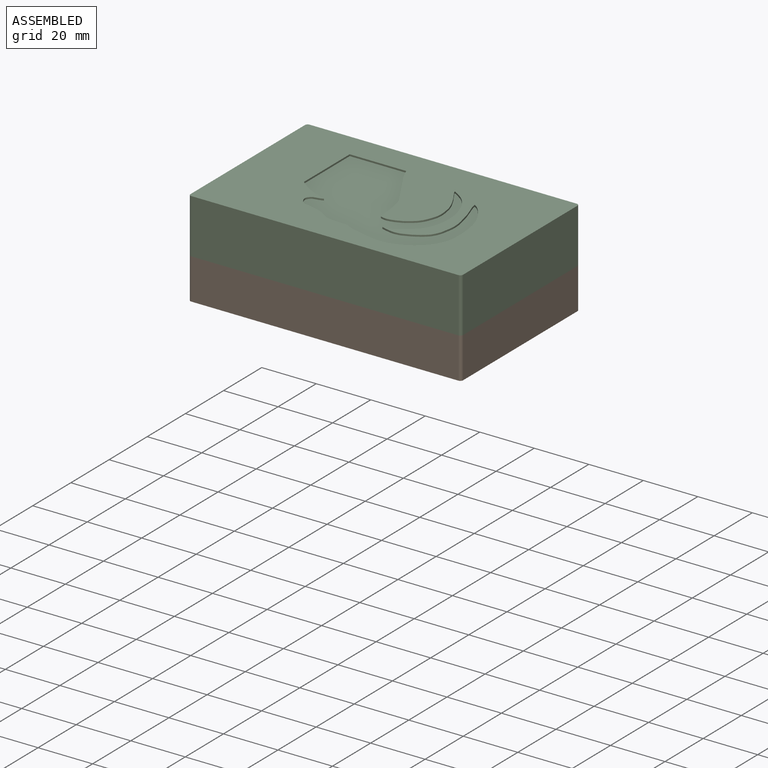
[diagram: assembled view]
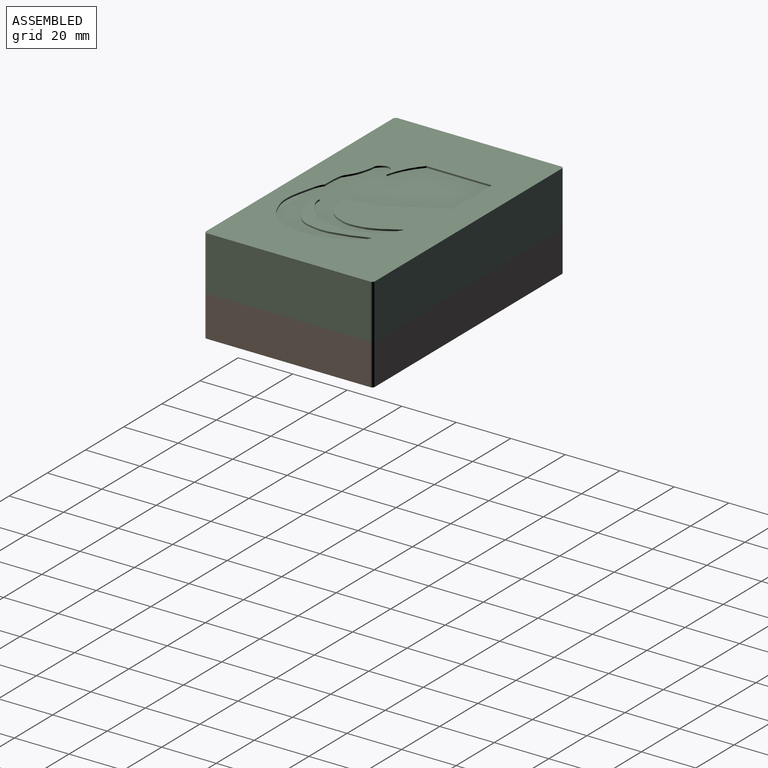
[diagram: assembled view, second angle]
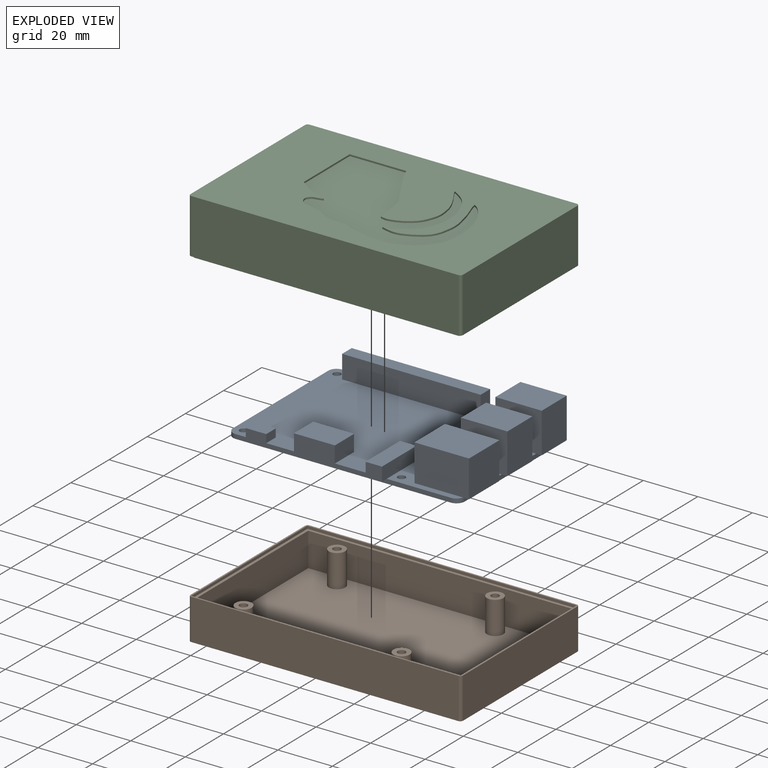
[diagram: exploded view]
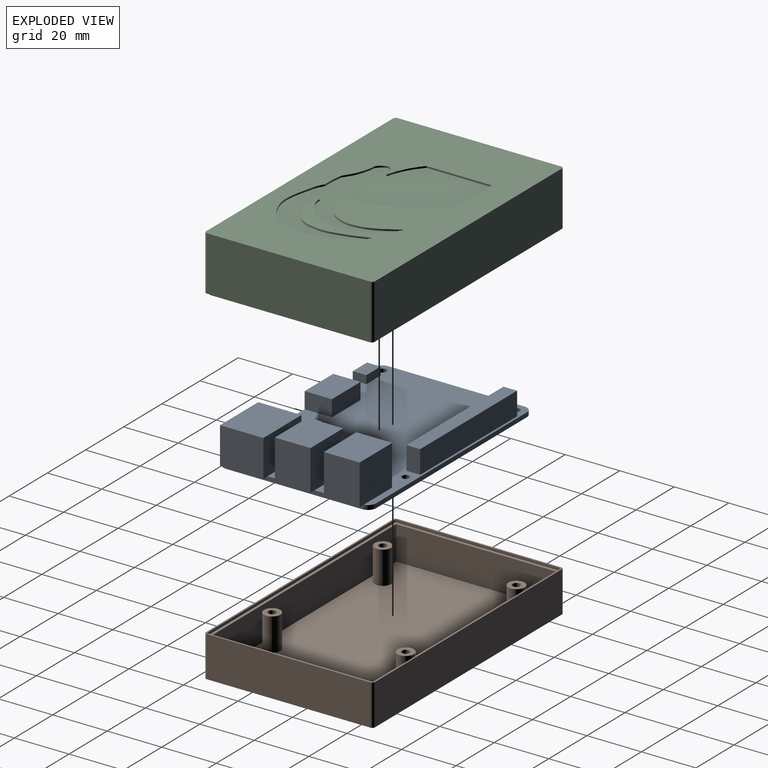
[diagram: exploded view, second angle]
ASSEMBLY  parts=3 mates=2
PART A: 51 faces, bbox 87.1x58.5x16.4 mm
  f0: plane 85x56mm, normal (0,0,1), area 3518.2mm2, adj f1,f2,f3,f4,f5,f6,f7,f8
  f1: plane 50x1.6mm, normal (1,0,0), area 80mm2, adj f0,f2,f8,f9,f19,f25,f26
  f2: cylinder r=3mm len=3mm, axis (0,0,1), area 7.5mm2, adj f0,f1,f3,f9,f19
  f3: plane 79x1.6mm, normal (0,1,0), area 126.4mm2, adj f0,f2,f4,f9
  f4: cylinder r=3mm len=3mm, axis (0,0,1), area 7.5mm2, adj f0,f3,f5,f9
  f5: plane 50x1.6mm, normal (-1,0,0), area 80mm2, adj f0,f4,f6,f9
  f6: cylinder r=3mm len=3mm, axis (0,0,1), area 7.5mm2, adj f0,f5,f7,f9
  f7: plane 79x7.6mm, normal (0,-1,0), area 238.9mm2, adj f0,f6,f8,f9,f32,f38,f39,f41
  f8: cylinder r=3mm len=3mm, axis (0,0,1), area 7.5mm2, adj f0,f1,f7,f9,f26
  f9: plane 85x56mm, normal (0,0,-1), area 4727.6mm2, adj f1,f2,f3,f4,f5,f6,f7,f8
  f10: cylinder r=1.4mm len=2.8mm, axis (0,0,1), area 14.1mm2, adj f0,f9
  f11: cylinder r=1.4mm len=2.8mm, axis (0,0,1), area 14.1mm2, adj f0,f9
  f12: cylinder r=1.4mm len=2.8mm, axis (0,0,1), area 14.1mm2, adj f0,f9
  f13: cylinder r=1.4mm len=2.8mm, axis (0,0,1), area 14.1mm2, adj f0,f9
  f14: plane 17x14.8mm, normal (0,1,0), area 251.6mm2, adj f0,f15,f17,f18,f19
  f15: plane 14.8x13.1mm, normal (-1,0,0), area 193.9mm2, adj f0,f14,f16,f18
  f16: plane 17x14.8mm, normal (0,-1,0), area 251.6mm2, adj f0,f15,f17,f18,f19
  f17: plane 14.8x13.1mm, normal (1,0,0), area 193.9mm2, adj f14,f16,f18,f19
  f18: plane 17x13.1mm, normal (0,0,1), area 222.7mm2, adj f14,f15,f16,f17
  f19: plane 13.1x2.14mm, normal (0,0,-1), area 27.5mm2, adj f1,f2,f14,f16,f17
  f20: plane 17x14.8mm, normal (0,1,0), area 251.6mm2, adj f0,f21,f23,f24,f25
  f21: plane 14.8x13.1mm, normal (-1,0,0), area 193.9mm2, adj f0,f20,f22,f24
  f22: plane 17x14.8mm, normal (0,-1,0), area 251.6mm2, adj f0,f21,f23,f24,f25
  f23: plane 14.8x13.1mm, normal (1,0,0), area 193.9mm2, adj f20,f22,f24,f25
  f24: plane 17x13.1mm, normal (0,0,1), area 222.7mm2, adj f20,f21,f22,f23
  f25: plane 13.1x2.1mm, normal (0,0,-1), area 27.5mm2, adj f1,f20,f22,f23
  f26: plane 15.9x2.18mm, normal (0,0,-1), area 33.4mm2, adj f1,f8,f27,f28,f30
  f27: plane 15.9x13.5mm, normal (1,0,0), area 214.6mm2, adj f26,f28,f30,f31
  f28: plane 20x13.5mm, normal (0,1,0), area 270mm2, adj f0,f26,f27,f29,f31
  f29: plane 15.9x13.5mm, normal (-1,0,0), area 214.7mm2, adj f0,f28,f30,f31
  f30: plane 20x13.5mm, normal (0,-1,0), area 270mm2, adj f0,f26,f27,f29,f31
  f31: plane 20x15.9mm, normal (0,0,1), area 318mm2, adj f27,f28,f29,f30
  f32: plane 6x2.5mm, normal (0,0,-1), area 15mm2, adj f7,f33,f35,f36
  f33: plane 18x5mm, normal (1,0,0), area 90mm2, adj f0,f32,f34,f36,f37
  f34: plane 6x5mm, normal (0,1,0), area 30mm2, adj f0,f33,f35,f37
  f35: plane 18x5mm, normal (-1,0,0), area 90mm2, adj f0,f32,f34,f36,f37
  f36: plane 6x5mm, normal (0,-1,0), area 30mm2, adj f32,f33,f35,f37
  f37: plane 18x6mm, normal (0,0,1), area 108mm2, adj f33,f34,f35,f36
  f38: plane 10x6mm, normal (-1,0,0), area 60mm2, adj f0,f7,f40,f41
  f39: plane 10x6mm, normal (1,0,0), area 60mm2, adj f0,f7,f40,f41
  f40: plane 15x6mm, normal (0,1,0), area 90mm2, adj f0,f38,f39,f41
  f41: plane 15x10mm, normal (0,0,1), area 150mm2, adj f7,f38,f39,f40
  f42: plane 5x3mm, normal (-1,0,0), area 15mm2, adj f0,f7,f44,f45
  f43: plane 5x3mm, normal (1,0,0), area 15mm2, adj f0,f7,f44,f45
  f44: plane 7.5x3mm, normal (0,1,0), area 22.5mm2, adj f0,f42,f43,f45
  f45: plane 7.5x5mm, normal (0,0,1), area 37.5mm2, adj f7,f42,f43,f44
  f46: plane 50.8x8.5mm, normal (0,1,0), area 431.8mm2, adj f0,f47,f49,f50
  f47: plane 8.5x5mm, normal (-1,0,0), area 42.5mm2, adj f0,f46,f48,f50
  f48: plane 50.8x8.5mm, normal (0,-1,0), area 431.8mm2, adj f0,f47,f49,f50
  f49: plane 8.5x5mm, normal (1,0,0), area 42.5mm2, adj f0,f46,f48,f50
  f50: plane 50.8x5mm, normal (0,0,1), area 254mm2, adj f46,f47,f48,f49
PART B: 36 faces, bbox 100x62x15 mm
  f0: plane 96.8x12.4mm, normal (0,-1,0), area 1200.3mm2, adj f1,f3,f4,f17
  f1: plane 58.8x12.4mm, normal (1,0,0), area 729.1mm2, adj f0,f2,f4,f17
  f2: plane 96.8x12.4mm, normal (0,1,0), area 1200.3mm2, adj f1,f3,f4,f17
  f3: plane 58.8x12.4mm, normal (-1,0,0), area 729.1mm2, adj f0,f2,f4,f17
  f4: plane 96.8x58.8mm, normal (0,0,1), area 5578.7mm2, adj f0,f1,f2,f3,f5,f7,f9,f11
  f5: cylinder r=3mm len=12mm, axis (0,0,-1), area 226.2mm2, adj f4,f6
  f6: plane 6x6mm, normal (0,0,1), area 21.7mm2, adj f5,f31
  f7: cylinder r=3mm len=12mm, axis (0,0,-1), area 226.2mm2, adj f4,f8
  f8: plane 6x6mm, normal (0,0,1), area 21.7mm2, adj f7,f29
  f9: cylinder r=3mm len=12mm, axis (0,0,-1), area 226.2mm2, adj f4,f10
  f10: plane 6x6mm, normal (0,0,1), area 21.7mm2, adj f9,f27
  f11: cylinder r=3mm len=12mm, axis (0,0,-1), area 226.2mm2, adj f4,f12
  f12: plane 6x6mm, normal (0,0,1), area 21.7mm2, adj f11,f25
  f13: plane 98.8x1mm, normal (0,-1,0), area 98.8mm2, adj f14,f16,f17,f23
  f14: plane 60.8x1mm, normal (1,0,0), area 60.8mm2, adj f13,f15,f17,f23
  f15: plane 98.8x1mm, normal (0,1,0), area 98.8mm2, adj f14,f16,f17,f23
  f16: plane 60.8x1mm, normal (-1,0,0), area 60.8mm2, adj f13,f15,f17,f23
  f17: plane 98.8x60.8mm, normal (0,0,1), area 315.2mm2, adj f0,f1,f2,f3,f13,f14,f15,f16
  f18: plane 100x62mm, normal (0,0,-1), area 6199.1mm2, adj f19,f20,f21,f22,f32,f33,f34,f35
  f19: plane 60x15mm, normal (1,0,0), area 900mm2, adj f18,f23,f34,f35
  f20: plane 98x15mm, normal (0,-1,0), area 1470mm2, adj f18,f23,f33,f34
  f21: plane 60x15mm, normal (-1,0,0), area 900mm2, adj f18,f23,f32,f33
  f22: plane 98x15mm, normal (0,1,0), area 1470mm2, adj f18,f23,f32,f35
  f23: plane 100x62mm, normal (0,0,1), area 192.1mm2, adj f13,f14,f15,f16,f19,f20,f21,f22
  f24: cone r=0mm half-angle=59deg, axis (0,0,1), area 7.7mm2, adj f25
  f25: cylinder r=1.45mm len=8mm, axis (0,0,1), area 72.9mm2, adj f12,f24
  f26: cone r=0mm half-angle=59deg, axis (0,0,1), area 7.7mm2, adj f27
  f27: cylinder r=1.45mm len=8mm, axis (0,0,1), area 72.9mm2, adj f10,f26
  f28: cone r=0mm half-angle=59deg, axis (0,0,1), area 7.7mm2, adj f29
  f29: cylinder r=1.45mm len=8mm, axis (0,0,1), area 72.9mm2, adj f8,f28
  f30: cone r=0mm half-angle=59deg, axis (0,0,1), area 7.7mm2, adj f31
  f31: cylinder r=1.45mm len=8mm, axis (0,0,1), area 72.9mm2, adj f6,f30
  f32: cylinder r=1mm len=15mm, axis (0,0,-1), area 23.6mm2, adj f18,f21,f22,f23
  f33: cylinder r=1mm len=15mm, axis (0,0,1), area 23.6mm2, adj f18,f20,f21,f23
  f34: cylinder r=1mm len=15mm, axis (0,0,-1), area 23.6mm2, adj f18,f19,f20,f23
  f35: cylinder r=1mm len=15mm, axis (0,0,1), area 23.6mm2, adj f18,f19,f22,f23
PART C: 38 faces, bbox 100x62x20.6 mm
  f0: plane 100x62mm, normal (0,0,1), area 4647.3mm2, adj f2,f3,f4,f5,f24,f25,f26,f27
  f1: plane 100x62mm, normal (0,0,-1), area 256.6mm2, adj f2,f3,f4,f5,f6,f7,f8,f9
  f2: plane 98x20mm, normal (0,1,0), area 1960mm2, adj f0,f1,f24,f27
  f3: plane 60x20mm, normal (-1,0,0), area 1200mm2, adj f0,f1,f24,f25
  f4: plane 98x20mm, normal (0,-1,0), area 1960mm2, adj f0,f1,f25,f26
  f5: plane 60x20mm, normal (1,0,0), area 1200mm2, adj f0,f1,f26,f27
  f6: plane 96.4x0.6mm, normal (0,1,0), area 57.8mm2, adj f1,f10,f20,f23
  f7: plane 58.4x0.6mm, normal (1,0,0), area 35mm2, adj f1,f10,f20,f21
  f8: plane 96.4x0.6mm, normal (0,-1,0), area 57.8mm2, adj f1,f10,f21,f22
  f9: plane 58.4x0.6mm, normal (-1,0,0), area 35mm2, adj f1,f10,f22,f23
  f10: plane 98.4x60.4mm, normal (0,0,-1), area 254.1mm2, adj f6,f7,f8,f9,f12,f13,f14,f15
  f11: plane 96.8x58.8mm, normal (0,0,-1), area 5688.4mm2, adj f12,f13,f14,f15,f16,f17,f18,f19
  f12: plane 54.8x19mm, normal (-1,0,0), area 1041.2mm2, adj f10,f11,f16,f17
  f13: plane 92.8x19mm, normal (0,1,0), area 1763.2mm2, adj f10,f11,f16,f18
  f14: plane 54.8x19mm, normal (1,0,0), area 1041.2mm2, adj f10,f11,f18,f19
  f15: plane 92.8x19mm, normal (0,-1,0), area 1763.2mm2, adj f10,f11,f17,f19
  f16: cylinder r=2mm len=19mm, axis (0,0,-1), area 59.7mm2, adj f10,f11,f12,f13
  f17: cylinder r=2mm len=19mm, axis (0,0,1), area 59.7mm2, adj f10,f11,f12,f15
  f18: cylinder r=2mm len=19mm, axis (0,0,1), area 59.7mm2, adj f10,f11,f13,f14
  f19: cylinder r=2mm len=19mm, axis (0,0,-1), area 59.7mm2, adj f10,f11,f14,f15
  f20: cylinder r=1mm len=1mm, axis (0,0,1), area 0.9mm2, adj f1,f6,f7,f10
  f21: cylinder r=1mm len=1mm, axis (0,0,-1), area 0.9mm2, adj f1,f7,f8,f10
  f22: cylinder r=1mm len=1mm, axis (0,0,1), area 0.9mm2, adj f1,f8,f9,f10
  f23: cylinder r=1mm len=1mm, axis (0,0,-1), area 0.9mm2, adj f1,f6,f9,f10
  f24: cylinder r=1mm len=20mm, axis (0,0,1), area 31.4mm2, adj f0,f1,f2,f3
  f25: cylinder r=1mm len=20mm, axis (0,0,-1), area 31.4mm2, adj f0,f1,f3,f4
  f26: cylinder r=1mm len=20mm, axis (0,0,1), area 31.4mm2, adj f0,f1,f4,f5
  f27: cylinder r=1mm len=20mm, axis (0,0,-1), area 31.4mm2, adj f0,f1,f2,f5
  f28: extruded ~37.33x31.72mm, area 39.2mm2, adj f0,f29,f36,f37
  f29: extruded ~29.77x17.48mm, area 25.4mm2, adj f0,f28,f30,f37
  f30: extruded ~33.3x13.21mm, area 26.4mm2, adj f0,f29,f31,f37
  f31: extruded ~27.74x13.92mm, area 22.7mm2, adj f0,f30,f32,f37
  f32: extruded ~30.87x12.33mm, area 20.2mm2, adj f0,f31,f33,f37
  f33: plane 20.74x0.6mm, normal (0,-1,0), area 12.4mm2, adj f0,f32,f34,f37
  f34: plane 24.02x0.6mm, normal (1,0,0), area 14.4mm2, adj f0,f33,f35,f37
  f35: extruded ~11.82x6.34mm, area 8.1mm2, adj f0,f34,f36,f37
  f36: extruded ~21.42x11.21mm, area 18.3mm2, adj f0,f28,f35,f37
  f37: plane 60.05x45.33mm, normal (0,0,1), area 1552mm2, adj f28,f29,f30,f31,f32,f33,f34,f35
PLACE A rot(axis=(0,0,1),0deg) t=(-49.48,-44.3,-8.97)mm
PLACE B t=(-54.08,-44.3,-9.17)mm
PLACE C t=(-54.08,-44.3,-9.17)mm
MATE planar C.f1 <-> B.f23  axis (0,0,-1) through (-54.08,-44.3,-9.17)mm
MATE planar A.f9 <-> B.f11  axis (0,0,-1) through (-49.43,-44.3,-10.57)mm
